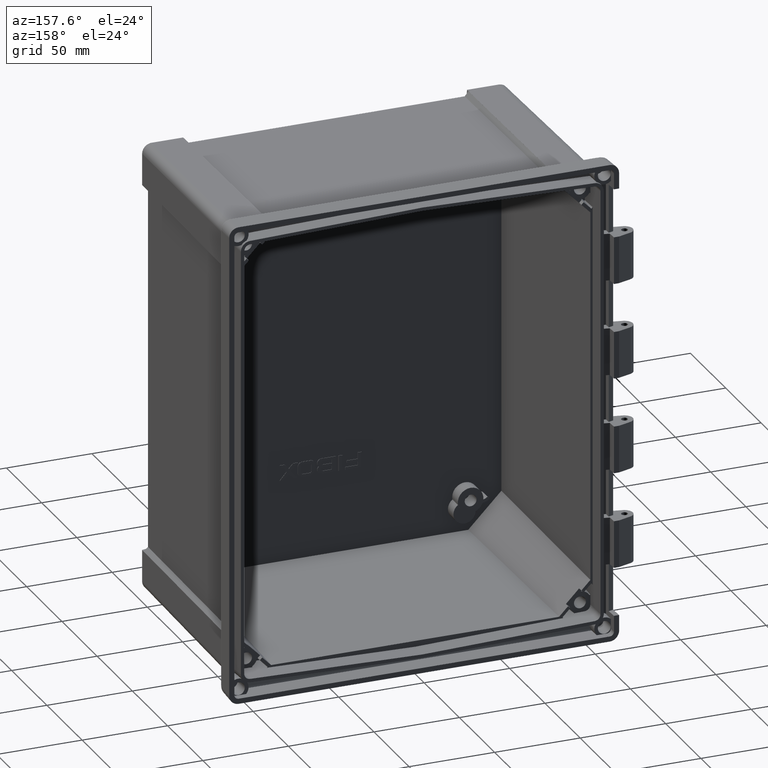
[diagram: clean part render]
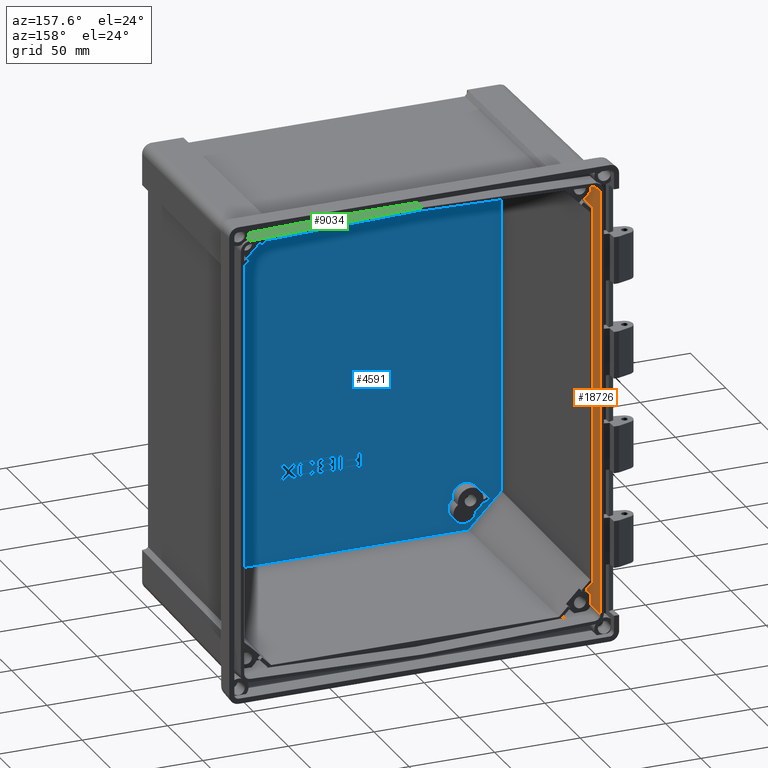
[diagram: same view with three faces highlighted in distinct colors, each labeled with its STEP entity id]
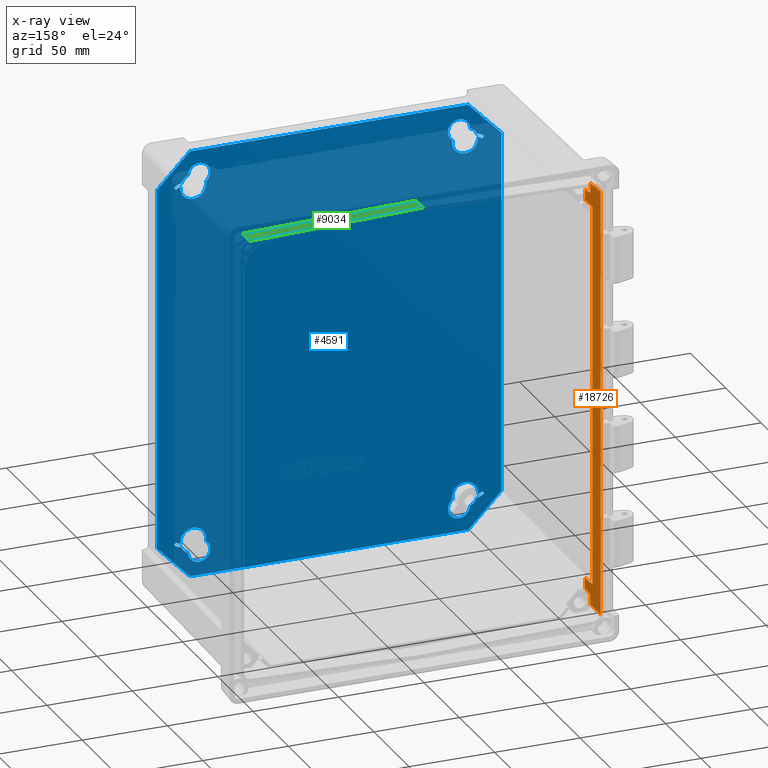
[diagram: x-ray of the same camera — body ghosted, the three highlighted faces saturated]
A machine part, auxiliary view with three faces highlighted in distinct colors.
The next image is the same camera in x-ray (body ghosted, the three faces saturated) — at least one of them is partly hidden behind the body in this view.
Their STEP definitions:

[orange] entity #18726 — the highlighted planar face has unit normal (0.9994, 0.0349, 0).
#162 = CARTESIAN_POINT ( 'NONE',  ( -103.4308259244309100, -23.00000000000000000, -117.9988522788570400 ) ) ;
#369 = CARTESIAN_POINT ( 'NONE',  ( -104.1313753109585000, -2.938890330204669600, -111.8300154407837100 ) ) ;
#495 = ORIENTED_EDGE ( 'NONE', *, *, #2017, .T. ) ;
#535 = EDGE_CURVE ( 'NONE', #14487, #4818, #5484, .T. ) ;
#607 = EDGE_CURVE ( 'NONE', #2114, #2254, #876, .T. ) ;
#876 = LINE ( 'NONE', #17382, #17849 ) ;
#1056 = CARTESIAN_POINT ( 'NONE',  ( -103.6825029301784400, -15.79291351792850400, 115.4162786159011800 ) ) ;
#1107 = CARTESIAN_POINT ( 'NONE',  ( -103.5987204892935300, -18.19212871576981900, 118.4950148596253700 ) ) ;
#1117 = VECTOR ( 'NONE', #5476, 1000.000000000000000 ) ;
#1597 = CARTESIAN_POINT ( 'NONE',  ( -103.4308259244309100, -23.00000000000000000, -117.9988522788570400 ) ) ;
#1822 = DIRECTION ( 'NONE',  ( 0.03489926192117735700, -0.9993841037616445500, 0.003668060235561879400 ) ) ;
#1830 = EDGE_CURVE ( 'NONE', #11108, #9424, #9783, .T. ) ;
#1956 = CARTESIAN_POINT ( 'NONE',  ( -104.0984760740683200, -3.881001210607279100, 111.8265575916495300 ) ) ;
#2017 = EDGE_CURVE ( 'NONE', #12022, #15631, #2290, .T. ) ;
#2114 = VERTEX_POINT ( 'NONE', #14749 ) ;
#2254 = VERTEX_POINT ( 'NONE', #16575 ) ;
#2263 = CARTESIAN_POINT ( 'NONE',  ( -103.7872652386536900, -12.79291351792850400, 128.5170091537690700 ) ) ;
#2289 = ORIENTED_EDGE ( 'NONE', *, *, #7786, .F. ) ;
#2290 = B_SPLINE_CURVE_WITH_KNOTS ( 'NONE', 3,
 ( #162, #5931, #16038, #7401 ),
 .UNSPECIFIED., .F., .F.,
 ( 4, 4 ),
 ( 0.0000000000000000000, 0.007254335360605193100 ),
 .UNSPECIFIED. ) ;
#2300 = VECTOR ( 'NONE', #16602, 1000.000000000000000 ) ;
#2340 = CARTESIAN_POINT ( 'NONE',  ( -103.4308259244309100, -23.00000000000000000, -111.7563847332468900 ) ) ;
#2637 = EDGE_CURVE ( 'NONE', #4071, #2254, #13010, .T. ) ;
#2650 = DIRECTION ( 'NONE',  ( -0.03487934512674303200, 0.9988137613916394700, -0.03397795370846536800 ) ) ;
#2658 = ORIENTED_EDGE ( 'NONE', *, *, #14439, .T. ) ;
#3007 = VERTEX_POINT ( 'NONE', #17009 ) ;
#3206 = CARTESIAN_POINT ( 'NONE',  ( -103.4308259244309100, -23.00000000000000000, -128.5000000000000000 ) ) ;
#3718 = VERTEX_POINT ( 'NONE', #13159 ) ;
#3773 = LINE ( 'NONE', #10301, #18236 ) ;
#4071 = VERTEX_POINT ( 'NONE', #16883 ) ;
#4091 = VECTOR ( 'NONE', #11856, 1000.000000000000000 ) ;
#4249 = EDGE_CURVE ( 'NONE', #4818, #16951, #14559, .T. ) ;
#4359 = CARTESIAN_POINT ( 'NONE',  ( -99.54119841926623700, -134.3843584140913700, 120.6230544466840200 ) ) ;
#4818 = VERTEX_POINT ( 'NONE', #14761 ) ;
#5060 = CARTESIAN_POINT ( 'NONE',  ( -103.7872652386536600, -12.79291351792850400, 124.7602110434836600 ) ) ;
#5104 = VERTEX_POINT ( 'NONE', #2340 ) ;
#5129 = VECTOR ( 'NONE', #6356, 1000.000000000000000 ) ;
#5206 = CARTESIAN_POINT ( 'NONE',  ( -103.7872652386536900, -12.79291351792850400, 111.7938480147869200 ) ) ;
#5287 = LINE ( 'NONE', #3206, #2300 ) ;
#5328 = EDGE_CURVE ( 'NONE', #4071, #8187, #5360, .T. ) ;
#5360 = LINE ( 'NONE', #4359, #10367 ) ;
#5476 = DIRECTION ( 'NONE',  ( -2.710935970784961700E-015, -0.0000000000000000000, -1.000000000000000000 ) ) ;
#5484 = LINE ( 'NONE', #1056, #1117 ) ;
#5931 = CARTESIAN_POINT ( 'NONE',  ( -103.5148045137928800, -20.59516784468852200, -118.2378401168267600 ) ) ;
#6026 = LINE ( 'NONE', #14329, #14717 ) ;
#6356 = DIRECTION ( 'NONE',  ( -1.079983486989452000E-016, -0.0000000000000000000, 1.000000000000000000 ) ) ;
#7130 = DIRECTION ( 'NONE',  ( 0.03487934512674304600, -0.9988137613916394700, -0.03397795370846537500 ) ) ;
#7227 = CARTESIAN_POINT ( 'NONE',  ( -104.1292413142658500, -3.000000000000000000, -128.5000000000000000 ) ) ;
#7401 = CARTESIAN_POINT ( 'NONE',  ( -103.6825029301784300, -15.79291351792850400, -118.7851837234541500 ) ) ;
#7786 = EDGE_CURVE ( 'NONE', #3007, #16951, #5287, .T. ) ;
#7901 = DIRECTION ( 'NONE',  ( -0.03489926192117735700, 0.9993841037616445500, 0.003668060235561879400 ) ) ;
#8056 = VECTOR ( 'NONE', #18259, 1000.000000000000200 ) ;
#8187 = VERTEX_POINT ( 'NONE', #13026 ) ;
#8604 = ORIENTED_EDGE ( 'NONE', *, *, #13134, .T. ) ;
#8680 = CARTESIAN_POINT ( 'NONE',  ( -103.7872652386536600, -12.79291351792850400, -111.7938480147868900 ) ) ;
#9119 = CARTESIAN_POINT ( 'NONE',  ( -103.4308259244309100, -23.00000000000000000, -128.5000000000000000 ) ) ;
#9330 = ORIENTED_EDGE ( 'NONE', *, *, #2637, .F. ) ;
#9424 = VERTEX_POINT ( 'NONE', #5206 ) ;
#9783 = LINE ( 'NONE', #2263, #15950 ) ;
#10275 = DIRECTION ( 'NONE',  ( 0.9993908270190957600, 0.03489949670250105200, 1.079325590229355300E-016 ) ) ;
#10301 = CARTESIAN_POINT ( 'NONE',  ( -103.7872652386536600, -12.79291351792850400, -124.7602110434836600 ) ) ;
#10312 = EDGE_CURVE ( 'NONE', #14487, #8187, #12822, .T. ) ;
#10367 = VECTOR ( 'NONE', #7130, 1000.000000000000100 ) ;
#10440 = CARTESIAN_POINT ( 'NONE',  ( -103.6825029301784300, -15.79291351792850400, -118.7851837234541500 ) ) ;
#10445 = EDGE_LOOP ( 'NONE', ( #18778, #17632, #2289, #12848, #17002, #8604, #15655, #495, #10980, #2658, #14171, #9330, #18903, #14258 ) ) ;
#10633 = EDGE_CURVE ( 'NONE', #3007, #9424, #15593, .T. ) ;
#10980 = ORIENTED_EDGE ( 'NONE', *, *, #18133, .F. ) ;
#11108 = VERTEX_POINT ( 'NONE', #8680 ) ;
#11856 = DIRECTION ( 'NONE',  ( 1.079983486989452000E-016, 0.0000000000000000000, -1.000000000000000000 ) ) ;
#12022 = VERTEX_POINT ( 'NONE', #1597 ) ;
#12733 = CARTESIAN_POINT ( 'NONE',  ( -103.5148045137929000, -20.59516784468851500, 118.2378401168267700 ) ) ;
#12822 = LINE ( 'NONE', #5060, #8056 ) ;
#12848 = ORIENTED_EDGE ( 'NONE', *, *, #10633, .T. ) ;
#13010 = LINE ( 'NONE', #17778, #4091 ) ;
#13026 = CARTESIAN_POINT ( 'NONE',  ( -103.7872652115580600, -12.79291351792850400, 124.7601083646913200 ) ) ;
#13109 = CARTESIAN_POINT ( 'NONE',  ( -103.6825029301784200, -15.79291351792850400, 124.7602110434836600 ) ) ;
#13134 = EDGE_CURVE ( 'NONE', #11108, #5104, #13186, .T. ) ;
#13159 = CARTESIAN_POINT ( 'NONE',  ( -103.6825029301784200, -15.79291351792850400, -124.7602110434836600 ) ) ;
#13186 = LINE ( 'NONE', #369, #13893 ) ;
#13229 = DIRECTION ( 'NONE',  ( -0.03489949670250104600, 0.9993908270190956500, -0.0000000000000000000 ) ) ;
#13893 = VECTOR ( 'NONE', #1822, 1000.000000000000000 ) ;
#13894 = AXIS2_PLACEMENT_3D ( 'NONE', #7227, #10275, #16186 ) ;
#14012 = FACE_OUTER_BOUND ( 'NONE', #10445, .T. ) ;
#14171 = ORIENTED_EDGE ( 'NONE', *, *, #607, .T. ) ;
#14202 = CARTESIAN_POINT ( 'NONE',  ( -103.4308259244309300, -23.00000000000000000, 117.9988522788570300 ) ) ;
#14258 = ORIENTED_EDGE ( 'NONE', *, *, #10312, .F. ) ;
#14329 = CARTESIAN_POINT ( 'NONE',  ( -103.6825029301784400, -15.79291351792850400, -115.4162786159011800 ) ) ;
#14439 = EDGE_CURVE ( 'NONE', #3718, #2114, #3773, .T. ) ;
#14487 = VERTEX_POINT ( 'NONE', #13109 ) ;
#14559 = B_SPLINE_CURVE_WITH_KNOTS ( 'NONE', 3,
 ( #15643, #1107, #12733, #17060 ),
 .UNSPECIFIED., .F., .F.,
 ( 4, 4 ),
 ( 9.988392560573487400E-016, 0.007254312124366521200 ),
 .UNSPECIFIED. ) ;
#14717 = VECTOR ( 'NONE', #16005, 1000.000000000000000 ) ;
#14749 = CARTESIAN_POINT ( 'NONE',  ( -103.7872651746618100, -12.79291351792850200, -124.7600357146438900 ) ) ;
#14761 = CARTESIAN_POINT ( 'NONE',  ( -103.6825029301784300, -15.79291351792850400, 118.7851837234543200 ) ) ;
#15593 = LINE ( 'NONE', #1956, #16520 ) ;
#15631 = VERTEX_POINT ( 'NONE', #10440 ) ;
#15643 = CARTESIAN_POINT ( 'NONE',  ( -103.6825029301784300, -15.79291351792850400, 118.7851837234543200 ) ) ;
#15655 = ORIENTED_EDGE ( 'NONE', *, *, #17800, .F. ) ;
#15950 = VECTOR ( 'NONE', #18476, 1000.000000000000000 ) ;
#16005 = DIRECTION ( 'NONE',  ( -2.710935970784961700E-015, 0.0000000000000000000, 1.000000000000000000 ) ) ;
#16038 = CARTESIAN_POINT ( 'NONE',  ( -103.5987204892934700, -18.19212871577082100, -118.4950148596252100 ) ) ;
#16186 = DIRECTION ( 'NONE',  ( -0.03489949670250104600, 0.9993908270190956500, 0.0000000000000000000 ) ) ;
#16520 = VECTOR ( 'NONE', #7901, 1000.000000000000000 ) ;
#16575 = CARTESIAN_POINT ( 'NONE',  ( -104.1467016990117300, -2.500000000000000000, -125.1095371107005000 ) ) ;
#16602 = DIRECTION ( 'NONE',  ( -1.079983486989452000E-016, -0.0000000000000000000, 1.000000000000000000 ) ) ;
#16883 = CARTESIAN_POINT ( 'NONE',  ( -104.1467016990117600, -2.500000000000000000, 125.1095371107003300 ) ) ;
#16951 = VERTEX_POINT ( 'NONE', #14202 ) ;
#17002 = ORIENTED_EDGE ( 'NONE', *, *, #1830, .F. ) ;
#17009 = CARTESIAN_POINT ( 'NONE',  ( -103.4308259244309300, -23.00000000000000000, 111.7563847332468300 ) ) ;
#17060 = CARTESIAN_POINT ( 'NONE',  ( -103.4308259244309300, -23.00000000000000000, 117.9988522788570300 ) ) ;
#17382 = CARTESIAN_POINT ( 'NONE',  ( -104.1507399921769100, -2.384358414091372900, -125.1134710417341400 ) ) ;
#17603 = PLANE ( 'NONE',  #13894 ) ;
#17632 = ORIENTED_EDGE ( 'NONE', *, *, #4249, .T. ) ;
#17778 = CARTESIAN_POINT ( 'NONE',  ( -104.1467016990117300, -2.500000000000000000, -128.5000000000000000 ) ) ;
#17800 = EDGE_CURVE ( 'NONE', #12022, #5104, #18418, .T. ) ;
#17849 = VECTOR ( 'NONE', #2650, 1000.000000000000100 ) ;
#18133 = EDGE_CURVE ( 'NONE', #3718, #15631, #6026, .T. ) ;
#18236 = VECTOR ( 'NONE', #13229, 1000.000000000000200 ) ;
#18259 = DIRECTION ( 'NONE',  ( -0.03489949670250104600, 0.9993908270190956500, 9.461030097310122400E-017 ) ) ;
#18418 = LINE ( 'NONE', #9119, #5129 ) ;
#18476 = DIRECTION ( 'NONE',  ( -1.079840551783293100E-016, 0.0000000000000000000, 1.000000000000000000 ) ) ;
#18726 = ADVANCED_FACE ( 'NONE', ( #14012 ), #17603, .T. ) ;
#18778 = ORIENTED_EDGE ( 'NONE', *, *, #535, .T. ) ;
#18903 = ORIENTED_EDGE ( 'NONE', *, *, #5328, .T. ) ;

[blue] entity #4591 — the highlighted planar face has unit normal (0, 1, -0).
#25 = EDGE_CURVE ( 'NONE', #6224, #9721, #12298, .T. ) ;
#80 = CARTESIAN_POINT ( 'NONE',  ( -81.38385470992932400, -134.9000000000000300, 125.7571582640641200 ) ) ;
#90 = VECTOR ( 'NONE', #12919, 1000.000000000000000 ) ;
#104 = VERTEX_POINT ( 'NONE', #18138 ) ;
#259 = LINE ( 'NONE', #4512, #1166 ) ;
#300 = DIRECTION ( 'NONE',  ( 0.0000000000000000000, 1.000000000000000000, 0.0000000000000000000 ) ) ;
#383 = ORIENTED_EDGE ( 'NONE', *, *, #5688, .T. ) ;
#404 = CARTESIAN_POINT ( 'NONE',  ( 79.50000000000002800, -134.9000000000000300, 104.7999999999999800 ) ) ;
#466 = CIRCLE ( 'NONE', #7489, 0.5000000000000004400 ) ;
#470 = CARTESIAN_POINT ( 'NONE',  ( -75.99999999999998600, -134.9000000000000300, -111.5000000000000000 ) ) ;
#562 = CIRCLE ( 'NONE', #18793, 4.500000000000017800 ) ;
#600 = DIRECTION ( 'NONE',  ( 0.0000000000000000000, 0.0000000000000000000, -1.000000000000000000 ) ) ;
#633 = CIRCLE ( 'NONE', #6639, 4.500000000000017800 ) ;
#683 = CARTESIAN_POINT ( 'NONE',  ( -90.86232990443230100, -134.9000000000000300, 116.0605509344103700 ) ) ;
#694 = CIRCLE ( 'NONE', #8049, 7.499999999999992900 ) ;
#738 = EDGE_CURVE ( 'NONE', #4088, #5818, #7761, .T. ) ;
#831 = ORIENTED_EDGE ( 'NONE', *, *, #1945, .T. ) ;
#842 = VECTOR ( 'NONE', #3531, 1000.000000000000100 ) ;
#863 = CARTESIAN_POINT ( 'NONE',  ( -79.49999999999998600, -134.9000000000000300, 97.29999999999999700 ) ) ;
#965 = CARTESIAN_POINT ( 'NONE',  ( -86.44130349117003200, -134.9000000000000300, -107.6404763409455000 ) ) ;
#1030 = VERTEX_POINT ( 'NONE', #4283 ) ;
#1050 = CARTESIAN_POINT ( 'NONE',  ( 100.7822178753233700, -134.9000000000000300, 125.7627436806437800 ) ) ;
#1166 = VECTOR ( 'NONE', #4383, 1000.000000000000000 ) ;
#1225 = DIRECTION ( 'NONE',  ( 0.0000000000000000000, 0.0000000000000000000, 1.000000000000000000 ) ) ;
#1256 = AXIS2_PLACEMENT_3D ( 'NONE', #12922, #9874, #2701 ) ;
#1286 = CARTESIAN_POINT ( 'NONE',  ( 75.99999999999998600, -134.9000000000000300, 111.5000000000000000 ) ) ;
#1327 = DIRECTION ( 'NONE',  ( 0.0000000000000000000, 0.0000000000000000000, -1.000000000000000000 ) ) ;
#1370 = EDGE_CURVE ( 'NONE', #7400, #17726, #10467, .T. ) ;
#1393 = ORIENTED_EDGE ( 'NONE', *, *, #8363, .F. ) ;
#1542 = EDGE_CURVE ( 'NONE', #10922, #7400, #13428, .T. ) ;
#1558 = DIRECTION ( 'NONE',  ( 0.0000000000000000000, 0.0000000000000000000, -1.000000000000000000 ) ) ;
#1661 = ORIENTED_EDGE ( 'NONE', *, *, #15473, .T. ) ;
#1684 = DIRECTION ( 'NONE',  ( -1.000000000000000000, 0.0000000000000000000, 1.705176904400339600E-016 ) ) ;
#1699 = EDGE_CURVE ( 'NONE', #14199, #8809, #4267, .T. ) ;
#1787 = AXIS2_PLACEMENT_3D ( 'NONE', #3443, #16922, #13696 ) ;
#1839 = VERTEX_POINT ( 'NONE', #5224 ) ;
#1940 = DIRECTION ( 'NONE',  ( 0.0000000000000000000, 1.000000000000000000, 0.0000000000000000000 ) ) ;
#1945 = EDGE_CURVE ( 'NONE', #2124, #15000, #5435, .T. ) ;
#1968 = VERTEX_POINT ( 'NONE', #18936 ) ;
#2000 = ORIENTED_EDGE ( 'NONE', *, *, #10782, .F. ) ;
#2003 = VERTEX_POINT ( 'NONE', #11851 ) ;
#2008 = DIRECTION ( 'NONE',  ( -0.0000000000000000000, 1.000000000000000000, -0.0000000000000000000 ) ) ;
#2062 = CARTESIAN_POINT ( 'NONE',  ( 86.96046681249322300, -134.9000000000000300, -105.5690480737166200 ) ) ;
#2079 = ORIENTED_EDGE ( 'NONE', *, *, #14554, .F. ) ;
#2124 = VERTEX_POINT ( 'NONE', #4528 ) ;
#2134 = VERTEX_POINT ( 'NONE', #10536 ) ;
#2167 = FACE_OUTER_BOUND ( 'NONE', #11824, .T. ) ;
#2261 = CARTESIAN_POINT ( 'NONE',  ( 90.39434835405982900, -134.9000000000000300, -105.3280071854753700 ) ) ;
#2307 = DIRECTION ( 'NONE',  ( 0.7151044260268458700, 0.0000000000000000000, 0.6990176391743023700 ) ) ;
#2316 = LINE ( 'NONE', #15358, #15369 ) ;
#2354 = CIRCLE ( 'NONE', #5199, 6.500000000000005300 ) ;
#2384 = CARTESIAN_POINT ( 'NONE',  ( 89.00592746446618300, -134.9000000000000300, -104.6000985423753300 ) ) ;
#2447 = CIRCLE ( 'NONE', #14194, 6.500000000000005300 ) ;
#2527 = CARTESIAN_POINT ( 'NONE',  ( 86.96046681249323700, -134.9000000000000300, 105.5690480737166000 ) ) ;
#2635 = DIRECTION ( 'NONE',  ( -0.0000000000000000000, -1.000000000000000000, -0.0000000000000000000 ) ) ;
#2667 = CARTESIAN_POINT ( 'NONE',  ( 90.04483953447267200, -134.9000000000000300, 105.6855593984887900 ) ) ;
#2668 = CARTESIAN_POINT ( 'NONE',  ( -75.99999999999998600, -134.9000000000000300, -118.0000000000000100 ) ) ;
#2701 = DIRECTION ( 'NONE',  ( 0.0000000000000000000, 0.0000000000000000000, 1.000000000000000000 ) ) ;
#2749 = ORIENTED_EDGE ( 'NONE', *, *, #9421, .T. ) ;
#2967 = ORIENTED_EDGE ( 'NONE', *, *, #15245, .T. ) ;
#3066 = LINE ( 'NONE', #5783, #18424 ) ;
#3096 = CARTESIAN_POINT ( 'NONE',  ( -90.04483953447267200, -134.9000000000000300, 105.6855593984887900 ) ) ;
#3114 = CARTESIAN_POINT ( 'NONE',  ( -100.7822178753233000, -134.9000000000000300, 105.9123724105407800 ) ) ;
#3139 = ORIENTED_EDGE ( 'NONE', *, *, #17270, .F. ) ;
#3161 = EDGE_CURVE ( 'NONE', #7098, #12820, #2447, .T. ) ;
#3443 = CARTESIAN_POINT ( 'NONE',  ( -75.99999999999998600, -134.9000000000000300, 111.5000000000000000 ) ) ;
#3482 = DIRECTION ( 'NONE',  ( 0.6990176391742998200, 0.0000000000000000000, 0.7151044260268485400 ) ) ;
#3531 = DIRECTION ( 'NONE',  ( -0.7151044260268458700, 0.0000000000000000000, 0.6990176391743023700 ) ) ;
#3664 = DIRECTION ( 'NONE',  ( 0.0000000000000000000, 1.000000000000000000, 0.0000000000000000000 ) ) ;
#3757 = ORIENTED_EDGE ( 'NONE', *, *, #1542, .F. ) ;
#3769 = DIRECTION ( 'NONE',  ( 0.0000000000000000000, 0.0000000000000000000, 1.000000000000000000 ) ) ;
#3809 = EDGE_CURVE ( 'NONE', #1839, #14199, #4010, .T. ) ;
#3833 = CARTESIAN_POINT ( 'NONE',  ( 86.44130349117001800, -134.9000000000000300, 107.6404763409455000 ) ) ;
#3890 = DIRECTION ( 'NONE',  ( 0.0000000000000000000, 0.0000000000000000000, 1.000000000000000000 ) ) ;
#3922 = EDGE_CURVE ( 'NONE', #7063, #17519, #14779, .T. ) ;
#3992 = ORIENTED_EDGE ( 'NONE', *, *, #1370, .F. ) ;
#4010 = CIRCLE ( 'NONE', #13836, 0.5000000000000004400 ) ;
#4020 = AXIS2_PLACEMENT_3D ( 'NONE', #404, #10621, #6099 ) ;
#4030 = DIRECTION ( 'NONE',  ( 0.0000000000000000000, 0.0000000000000000000, 1.000000000000000000 ) ) ;
#4088 = VERTEX_POINT ( 'NONE', #5026 ) ;
#4139 = DIRECTION ( 'NONE',  ( 0.0000000000000000000, 0.0000000000000000000, 1.000000000000000000 ) ) ;
#4177 = DIRECTION ( 'NONE',  ( 0.0000000000000000000, 1.000000000000000000, 0.0000000000000000000 ) ) ;
#4194 = CIRCLE ( 'NONE', #11405, 0.5000000000000004400 ) ;
#4195 = CARTESIAN_POINT ( 'NONE',  ( 72.14481036014669300, -134.9000000000000300, 106.2666919791810500 ) ) ;
#4216 = CARTESIAN_POINT ( 'NONE',  ( -7.632683877648426900, -134.9000000000000300, 216.8222718837420200 ) ) ;
#4267 = LINE ( 'NONE', #10583, #842 ) ;
#4283 = CARTESIAN_POINT ( 'NONE',  ( 90.37202234888103200, -134.9000000000000300, -106.0636485492929800 ) ) ;
#4383 = DIRECTION ( 'NONE',  ( -0.6990176391742990400, 0.0000000000000000000, -0.7151044260268492000 ) ) ;
#4389 = CARTESIAN_POINT ( 'NONE',  ( -90.37202234888103200, -134.9000000000000300, 106.0636485492929800 ) ) ;
#4409 = AXIS2_PLACEMENT_3D ( 'NONE', #8640, #18871, #1558 ) ;
#4416 = AXIS2_PLACEMENT_3D ( 'NONE', #470, #18208, #7721 ) ;
#4449 = DIRECTION ( 'NONE',  ( 0.0000000000000000000, 1.000000000000000000, 0.0000000000000000000 ) ) ;
#4502 = CARTESIAN_POINT ( 'NONE',  ( -100.7878032919030200, -134.9000000000000300, -125.7571582640640900 ) ) ;
#4503 = DIRECTION ( 'NONE',  ( 0.0000000000000000000, 1.000000000000000000, 0.0000000000000000000 ) ) ;
#4512 = CARTESIAN_POINT ( 'NONE',  ( 118.0975143276875200, -134.9000000000000300, -88.19859176020000300 ) ) ;
#4516 = CARTESIAN_POINT ( 'NONE',  ( 86.11864576157238100, -134.9000000000000300, -101.1484895888386400 ) ) ;
#4528 = CARTESIAN_POINT ( 'NONE',  ( 90.39434835405982900, -134.9000000000000300, 105.3280071854753400 ) ) ;
#4591 = ADVANCED_FACE ( 'NONE', ( #17988, #7203, #2167, #14983, #16843 ), #4746, .T. ) ;
#4666 = DIRECTION ( 'NONE',  ( 0.0000000000000000000, 1.000000000000000000, 0.0000000000000000000 ) ) ;
#4672 = VERTEX_POINT ( 'NONE', #10990 ) ;
#4736 = AXIS2_PLACEMENT_3D ( 'NONE', #13745, #6215, #16654 ) ;
#4740 = CARTESIAN_POINT ( 'NONE',  ( -90.37202234888103200, -134.9000000000000300, -106.0636485492929800 ) ) ;
#4746 = PLANE ( 'NONE',  #5901 ) ;
#4905 = ORIENTED_EDGE ( 'NONE', *, *, #738, .T. ) ;
#4970 = CARTESIAN_POINT ( 'NONE',  ( -86.11864576157238100, -134.9000000000000300, 101.1484895888386400 ) ) ;
#5026 = CARTESIAN_POINT ( 'NONE',  ( -89.67624536215264200, -134.9000000000000300, -104.6260584353104400 ) ) ;
#5041 = ORIENTED_EDGE ( 'NONE', *, *, #15595, .F. ) ;
#5043 = AXIS2_PLACEMENT_3D ( 'NONE', #17273, #4177, #7774 ) ;
#5074 = CIRCLE ( 'NONE', #6439, 0.5000000000000004400 ) ;
#5076 = ORIENTED_EDGE ( 'NONE', *, *, #15545, .F. ) ;
#5118 = CARTESIAN_POINT ( 'NONE',  ( -75.99999999999998600, -134.9000000000000300, -111.5000000000000000 ) ) ;
#5157 = VECTOR ( 'NONE', #1684, 1000.000000000000000 ) ;
#5174 = AXIS2_PLACEMENT_3D ( 'NONE', #5331, #12656, #3890 ) ;
#5199 = AXIS2_PLACEMENT_3D ( 'NONE', #17898, #2008, #6372 ) ;
#5224 = CARTESIAN_POINT ( 'NONE',  ( -89.32673654256549900, -134.9000000000000300, 104.4836106483238600 ) ) ;
#5283 = CARTESIAN_POINT ( 'NONE',  ( -89.00592746446618300, -134.9000000000000300, 104.6000985423753300 ) ) ;
#5289 = CARTESIAN_POINT ( 'NONE',  ( -89.00592746446618300, -134.9000000000000300, -104.6000985423753300 ) ) ;
#5321 = AXIS2_PLACEMENT_3D ( 'NONE', #16017, #10184, #13111 ) ;
#5331 = CARTESIAN_POINT ( 'NONE',  ( 75.99999999999998600, -134.9000000000000300, -111.5000000000000000 ) ) ;
#5368 = VERTEX_POINT ( 'NONE', #7387 ) ;
#5402 = EDGE_LOOP ( 'NONE', ( #3139, #10677, #18497, #5076, #6576, #8704, #15215, #6981, #12291, #10872 ) ) ;
#5426 = AXIS2_PLACEMENT_3D ( 'NONE', #13162, #4666, #14899 ) ;
#5435 = CIRCLE ( 'NONE', #11417, 0.5000000000000004400 ) ;
#5493 = DIRECTION ( 'NONE',  ( 0.0000000000000000000, 0.0000000000000000000, -1.000000000000000000 ) ) ;
#5495 = ORIENTED_EDGE ( 'NONE', *, *, #6257, .T. ) ;
#5551 = EDGE_CURVE ( 'NONE', #12820, #12145, #10124, .T. ) ;
#5609 = CARTESIAN_POINT ( 'NONE',  ( 89.00592746446618300, -134.9000000000000300, 104.6000985423753300 ) ) ;
#5629 = DIRECTION ( 'NONE',  ( 0.0000000000000000000, 0.0000000000000000000, 1.000000000000000000 ) ) ;
#5683 = EDGE_CURVE ( 'NONE', #1968, #13768, #7388, .T. ) ;
#5688 = EDGE_CURVE ( 'NONE', #11930, #12949, #15161, .T. ) ;
#5700 = EDGE_CURVE ( 'NONE', #19002, #16831, #10344, .T. ) ;
#5783 = CARTESIAN_POINT ( 'NONE',  ( 89.67624536215264200, -134.9000000000000300, -104.6260584353104400 ) ) ;
#5818 = VERTEX_POINT ( 'NONE', #14580 ) ;
#5824 = CARTESIAN_POINT ( 'NONE',  ( -86.11864576157238100, -134.9000000000000300, -101.1484895888386400 ) ) ;
#5860 = CIRCLE ( 'NONE', #13177, 0.5000000000000004400 ) ;
#5861 = DIRECTION ( 'NONE',  ( 1.000000000000000000, 0.0000000000000000000, 0.0000000000000000000 ) ) ;
#5901 = AXIS2_PLACEMENT_3D ( 'NONE', #16471, #7709, #9170 ) ;
#5969 = CARTESIAN_POINT ( 'NONE',  ( -79.49999999999998600, -134.9000000000000300, 104.8000000000000100 ) ) ;
#6090 = CIRCLE ( 'NONE', #9220, 7.499999999999992900 ) ;
#6094 = CIRCLE ( 'NONE', #16060, 0.5000000000000004400 ) ;
#6099 = DIRECTION ( 'NONE',  ( 0.0000000000000000000, 0.0000000000000000000, 1.000000000000000000 ) ) ;
#6165 = DIRECTION ( 'NONE',  ( 0.0000000000000000000, 0.0000000000000000000, 1.000000000000000000 ) ) ;
#6215 = DIRECTION ( 'NONE',  ( 0.0000000000000000000, 1.000000000000000000, 0.0000000000000000000 ) ) ;
#6224 = VERTEX_POINT ( 'NONE', #7153 ) ;
#6237 = ORIENTED_EDGE ( 'NONE', *, *, #12998, .T. ) ;
#6257 = EDGE_CURVE ( 'NONE', #15352, #10342, #259, .T. ) ;
#6312 = CARTESIAN_POINT ( 'NONE',  ( -216.5925281097679800, -134.9000000000000300, 12.56312918913155000 ) ) ;
#6335 = VECTOR ( 'NONE', #16546, 1000.000000000000000 ) ;
#6372 = DIRECTION ( 'NONE',  ( 0.0000000000000000000, 0.0000000000000000000, -1.000000000000000000 ) ) ;
#6390 = AXIS2_PLACEMENT_3D ( 'NONE', #15844, #18751, #5629 ) ;
#6409 = CARTESIAN_POINT ( 'NONE',  ( -72.14481036014666400, -134.9000000000000300, -106.2666919791810800 ) ) ;
#6439 = AXIS2_PLACEMENT_3D ( 'NONE', #15795, #14188, #4139 ) ;
#6521 = DIRECTION ( 'NONE',  ( -0.0000000000000000000, -1.000000000000000000, -0.0000000000000000000 ) ) ;
#6542 = CARTESIAN_POINT ( 'NONE',  ( 86.11864576157238100, -134.9000000000000300, 101.1484895888386400 ) ) ;
#6576 = ORIENTED_EDGE ( 'NONE', *, *, #18113, .F. ) ;
#6596 = DIRECTION ( 'NONE',  ( 0.0000000000000000000, 0.0000000000000000000, 1.000000000000000000 ) ) ;
#6603 = CARTESIAN_POINT ( 'NONE',  ( -79.50000000000001400, -134.9000000000000300, -104.8000000000000000 ) ) ;
#6639 = AXIS2_PLACEMENT_3D ( 'NONE', #16703, #12371, #9648 ) ;
#6703 = CARTESIAN_POINT ( 'NONE',  ( -79.50000000000001400, -134.9000000000000300, -97.29999999999996900 ) ) ;
#6729 = DIRECTION ( 'NONE',  ( 0.0000000000000000000, 0.0000000000000000000, 1.000000000000000000 ) ) ;
#6732 = VERTEX_POINT ( 'NONE', #2527 ) ;
#6796 = CARTESIAN_POINT ( 'NONE',  ( 79.50000000000002800, -134.9000000000000300, 104.7999999999999800 ) ) ;
#6839 = LINE ( 'NONE', #4216, #7523 ) ;
#6877 = ORIENTED_EDGE ( 'NONE', *, *, #7740, .F. ) ;
#6981 = ORIENTED_EDGE ( 'NONE', *, *, #9823, .F. ) ;
#6993 = DIRECTION ( 'NONE',  ( -0.0000000000000000000, -1.000000000000000000, -0.0000000000000000000 ) ) ;
#7063 = VERTEX_POINT ( 'NONE', #10748 ) ;
#7098 = VERTEX_POINT ( 'NONE', #13443 ) ;
#7105 = DIRECTION ( 'NONE',  ( 0.0000000000000000000, 0.0000000000000000000, -1.000000000000000000 ) ) ;
#7153 = CARTESIAN_POINT ( 'NONE',  ( 79.49999999999998600, -134.9000000000000300, -97.29999999999998300 ) ) ;
#7203 = FACE_BOUND ( 'NONE', #18185, .T. ) ;
#7267 = AXIS2_PLACEMENT_3D ( 'NONE', #1286, #6993, #7105 ) ;
#7277 = CARTESIAN_POINT ( 'NONE',  ( -100.7822178753233000, -134.9000000000000300, 125.7627436806437800 ) ) ;
#7316 = CARTESIAN_POINT ( 'NONE',  ( -100.7878032919029700, -134.9000000000000300, 125.7571582640641200 ) ) ;
#7387 = CARTESIAN_POINT ( 'NONE',  ( -86.96046681249325200, -134.9000000000000300, -105.5690480737166000 ) ) ;
#7388 = CIRCLE ( 'NONE', #5174, 6.500000000000005300 ) ;
#7400 = VERTEX_POINT ( 'NONE', #12610 ) ;
#7418 = VERTEX_POINT ( 'NONE', #5289 ) ;
#7465 = DIRECTION ( 'NONE',  ( 0.0000000000000000000, 0.0000000000000000000, 1.000000000000000000 ) ) ;
#7489 = AXIS2_PLACEMENT_3D ( 'NONE', #3096, #13300, #13116 ) ;
#7523 = VECTOR ( 'NONE', #13090, 1000.000000000000000 ) ;
#7563 = VERTEX_POINT ( 'NONE', #5609 ) ;
#7568 = DIRECTION ( 'NONE',  ( 0.0000000000000000000, 1.000000000000000000, 0.0000000000000000000 ) ) ;
#7690 = AXIS2_PLACEMENT_3D ( 'NONE', #4970, #3664, #12354 ) ;
#7696 = CIRCLE ( 'NONE', #4020, 7.499999999999992900 ) ;
#7709 = DIRECTION ( 'NONE',  ( 0.0000000000000000000, 1.000000000000000000, -0.0000000000000000000 ) ) ;
#7721 = DIRECTION ( 'NONE',  ( 0.0000000000000000000, 0.0000000000000000000, 1.000000000000000000 ) ) ;
#7734 = DIRECTION ( 'NONE',  ( -6.551401510808472500E-017, 0.0000000000000000000, 1.000000000000000000 ) ) ;
#7740 = EDGE_CURVE ( 'NONE', #8809, #16072, #466, .T. ) ;
#7761 = LINE ( 'NONE', #16989, #14836 ) ;
#7774 = DIRECTION ( 'NONE',  ( 0.0000000000000000000, 0.0000000000000000000, 1.000000000000000000 ) ) ;
#8049 = AXIS2_PLACEMENT_3D ( 'NONE', #9072, #300, #9520 ) ;
#8143 = EDGE_CURVE ( 'NONE', #5368, #12727, #12790, .T. ) ;
#8149 = CARTESIAN_POINT ( 'NONE',  ( 75.99999999999998600, -134.9000000000000300, -118.0000000000000100 ) ) ;
#8165 = ORIENTED_EDGE ( 'NONE', *, *, #5700, .T. ) ;
#8171 = DIRECTION ( 'NONE',  ( -0.7151044260268458700, 0.0000000000000000000, -0.6990176391743023700 ) ) ;
#8303 = CIRCLE ( 'NONE', #11662, 4.500000000000017800 ) ;
#8363 = EDGE_CURVE ( 'NONE', #104, #4672, #14859, .T. ) ;
#8531 = ORIENTED_EDGE ( 'NONE', *, *, #11258, .F. ) ;
#8599 = DIRECTION ( 'NONE',  ( -0.0000000000000000000, 1.000000000000000000, -0.0000000000000000000 ) ) ;
#8605 = CARTESIAN_POINT ( 'NONE',  ( -90.04483953447267200, -134.9000000000000300, -105.6855593984887900 ) ) ;
#8640 = CARTESIAN_POINT ( 'NONE',  ( -89.32673654256549900, -134.9000000000000300, -104.9836106483238600 ) ) ;
#8686 = LINE ( 'NONE', #7316, #9145 ) ;
#8704 = ORIENTED_EDGE ( 'NONE', *, *, #18816, .F. ) ;
#8809 = VERTEX_POINT ( 'NONE', #18994 ) ;
#9052 = LINE ( 'NONE', #4502, #5157 ) ;
#9072 = CARTESIAN_POINT ( 'NONE',  ( 79.50000000000002800, -134.9000000000000300, 104.7999999999999800 ) ) ;
#9145 = VECTOR ( 'NONE', #5861, 1000.000000000000000 ) ;
#9170 = DIRECTION ( 'NONE',  ( 0.0000000000000000000, 0.0000000000000000000, 1.000000000000000000 ) ) ;
#9220 = AXIS2_PLACEMENT_3D ( 'NONE', #6796, #17033, #3769 ) ;
#9222 = EDGE_CURVE ( 'NONE', #13768, #13512, #14125, .T. ) ;
#9241 = DIRECTION ( 'NONE',  ( -0.0000000000000000000, 1.000000000000000000, -0.0000000000000000000 ) ) ;
#9310 = DIRECTION ( 'NONE',  ( 0.0000000000000000000, 0.0000000000000000000, 1.000000000000000000 ) ) ;
#9421 = EDGE_CURVE ( 'NONE', #16831, #2124, #2316, .T. ) ;
#9436 = ORIENTED_EDGE ( 'NONE', *, *, #12882, .F. ) ;
#9462 = VERTEX_POINT ( 'NONE', #3833 ) ;
#9463 = EDGE_LOOP ( 'NONE', ( #10954, #18374, #383, #2000, #2079, #14323, #13495, #8165, #2749, #831 ) ) ;
#9520 = DIRECTION ( 'NONE',  ( 0.0000000000000000000, 0.0000000000000000000, 1.000000000000000000 ) ) ;
#9590 = AXIS2_PLACEMENT_3D ( 'NONE', #6603, #12332, #6729 ) ;
#9626 = EDGE_CURVE ( 'NONE', #1030, #17455, #2354, .T. ) ;
#9648 = DIRECTION ( 'NONE',  ( 0.0000000000000000000, 0.0000000000000000000, 1.000000000000000000 ) ) ;
#9679 = CIRCLE ( 'NONE', #1256, 7.500000000000020400 ) ;
#9721 = VERTEX_POINT ( 'NONE', #2062 ) ;
#9762 = CARTESIAN_POINT ( 'NONE',  ( 100.7822178753233700, -134.9000000000000300, -105.9123724105406800 ) ) ;
#9823 = EDGE_CURVE ( 'NONE', #13512, #6224, #9679, .T. ) ;
#9874 = DIRECTION ( 'NONE',  ( 0.0000000000000000000, 1.000000000000000000, 0.0000000000000000000 ) ) ;
#9917 = ORIENTED_EDGE ( 'NONE', *, *, #3922, .T. ) ;
#10124 = CIRCLE ( 'NONE', #4416, 6.500000000000005300 ) ;
#10133 = ORIENTED_EDGE ( 'NONE', *, *, #16664, .T. ) ;
#10184 = DIRECTION ( 'NONE',  ( 0.0000000000000000000, -1.000000000000000000, 0.0000000000000000000 ) ) ;
#10206 = LINE ( 'NONE', #6312, #6335 ) ;
#10288 = CARTESIAN_POINT ( 'NONE',  ( 89.32673654256549900, -134.9000000000000300, -104.9836106483238600 ) ) ;
#10342 = VERTEX_POINT ( 'NONE', #18385 ) ;
#10344 = CIRCLE ( 'NONE', #16093, 0.5000000000000004400 ) ;
#10355 = ORIENTED_EDGE ( 'NONE', *, *, #10394, .F. ) ;
#10394 = EDGE_CURVE ( 'NONE', #17726, #1839, #5074, .T. ) ;
#10467 = CIRCLE ( 'NONE', #5321, 4.500000000000017800 ) ;
#10536 = CARTESIAN_POINT ( 'NONE',  ( -81.38385470992929500, -134.9000000000000300, -125.7571582640641200 ) ) ;
#10583 = CARTESIAN_POINT ( 'NONE',  ( -89.67624536215264200, -134.9000000000000300, 104.6260584353104400 ) ) ;
#10621 = DIRECTION ( 'NONE',  ( 0.0000000000000000000, 1.000000000000000000, 0.0000000000000000000 ) ) ;
#10626 = VERTEX_POINT ( 'NONE', #17547 ) ;
#10677 = ORIENTED_EDGE ( 'NONE', *, *, #9626, .F. ) ;
#10748 = CARTESIAN_POINT ( 'NONE',  ( -100.7822178753232800, -134.9000000000000300, -105.9123724105407400 ) ) ;
#10782 = EDGE_CURVE ( 'NONE', #12836, #12949, #694, .T. ) ;
#10789 = CIRCLE ( 'NONE', #16611, 6.500000000000005300 ) ;
#10809 = CARTESIAN_POINT ( 'NONE',  ( -86.11864576157238100, -134.9000000000000300, -101.1484895888386400 ) ) ;
#10872 = ORIENTED_EDGE ( 'NONE', *, *, #5683, .F. ) ;
#10922 = VERTEX_POINT ( 'NONE', #863 ) ;
#10954 = ORIENTED_EDGE ( 'NONE', *, *, #13719, .T. ) ;
#10990 = CARTESIAN_POINT ( 'NONE',  ( -82.49764676270947900, -134.9000000000000300, 111.6748900999229100 ) ) ;
#11034 = CARTESIAN_POINT ( 'NONE',  ( 89.32673654256549900, -134.9000000000000300, 104.4836106483238600 ) ) ;
#11258 = EDGE_CURVE ( 'NONE', #4672, #17329, #12329, .T. ) ;
#11294 = ORIENTED_EDGE ( 'NONE', *, *, #11792, .T. ) ;
#11405 = AXIS2_PLACEMENT_3D ( 'NONE', #10288, #8599, #19013 ) ;
#11417 = AXIS2_PLACEMENT_3D ( 'NONE', #2667, #12751, #5493 ) ;
#11457 = CARTESIAN_POINT ( 'NONE',  ( 79.50000000000002800, -134.9000000000000300, 97.29999999999998300 ) ) ;
#11586 = EDGE_CURVE ( 'NONE', #16072, #104, #16487, .T. ) ;
#11615 = DIRECTION ( 'NONE',  ( 0.0000000000000000000, 0.0000000000000000000, 1.000000000000000000 ) ) ;
#11632 = DIRECTION ( 'NONE',  ( 0.7151044260268458700, 0.0000000000000000000, -0.6990176391743023700 ) ) ;
#11662 = AXIS2_PLACEMENT_3D ( 'NONE', #4516, #14765, #12073 ) ;
#11692 = CARTESIAN_POINT ( 'NONE',  ( 89.32673654256549900, -134.9000000000000300, 104.9836106483238600 ) ) ;
#11725 = CARTESIAN_POINT ( 'NONE',  ( -89.32673654256549900, -134.9000000000000300, 104.9836106483238600 ) ) ;
#11752 = VECTOR ( 'NONE', #3482, 999.9999999999998900 ) ;
#11770 = DIRECTION ( 'NONE',  ( 0.0000000000000000000, 0.0000000000000000000, 1.000000000000000000 ) ) ;
#11792 = EDGE_CURVE ( 'NONE', #11903, #2003, #8686, .T. ) ;
#11824 = EDGE_LOOP ( 'NONE', ( #9917, #2967, #11294, #16582, #1661, #5495, #17560, #10133 ) ) ;
#11835 = CARTESIAN_POINT ( 'NONE',  ( 72.14481036014663600, -134.9000000000000300, -106.2666919791810900 ) ) ;
#11851 = CARTESIAN_POINT ( 'NONE',  ( 81.38385470992928100, -134.9000000000000300, 125.7571582640641200 ) ) ;
#11903 = VERTEX_POINT ( 'NONE', #80 ) ;
#11930 = VERTEX_POINT ( 'NONE', #14660 ) ;
#12031 = CARTESIAN_POINT ( 'NONE',  ( -72.14481036014663600, -134.9000000000000300, 106.2666919791810900 ) ) ;
#12073 = DIRECTION ( 'NONE',  ( 0.0000000000000000000, 0.0000000000000000000, -1.000000000000000000 ) ) ;
#12145 = VERTEX_POINT ( 'NONE', #6409 ) ;
#12291 = ORIENTED_EDGE ( 'NONE', *, *, #9222, .F. ) ;
#12298 = CIRCLE ( 'NONE', #14958, 7.500000000000020400 ) ;
#12329 = CIRCLE ( 'NONE', #1787, 6.500000000000005300 ) ;
#12332 = DIRECTION ( 'NONE',  ( 0.0000000000000000000, 1.000000000000000000, 0.0000000000000000000 ) ) ;
#12354 = DIRECTION ( 'NONE',  ( 0.0000000000000000000, 0.0000000000000000000, 1.000000000000000000 ) ) ;
#12358 = EDGE_CURVE ( 'NONE', #2003, #16772, #6839, .T. ) ;
#12371 = DIRECTION ( 'NONE',  ( -0.0000000000000000000, 1.000000000000000000, -0.0000000000000000000 ) ) ;
#12406 = ORIENTED_EDGE ( 'NONE', *, *, #3809, .F. ) ;
#12482 = CARTESIAN_POINT ( 'NONE',  ( -89.67624536215264200, -134.9000000000000300, 104.6260584353104400 ) ) ;
#12577 = DIRECTION ( 'NONE',  ( -0.0000000000000000000, -1.000000000000000000, -0.0000000000000000000 ) ) ;
#12610 = CARTESIAN_POINT ( 'NONE',  ( -86.96046681249322300, -134.9000000000000300, 105.5690480737166200 ) ) ;
#12639 = EDGE_CURVE ( 'NONE', #6732, #7563, #633, .T. ) ;
#12656 = DIRECTION ( 'NONE',  ( 0.0000000000000000000, 1.000000000000000000, 0.0000000000000000000 ) ) ;
#12666 = ORIENTED_EDGE ( 'NONE', *, *, #1699, .F. ) ;
#12727 = VERTEX_POINT ( 'NONE', #6703 ) ;
#12751 = DIRECTION ( 'NONE',  ( -0.0000000000000000000, -1.000000000000000000, -0.0000000000000000000 ) ) ;
#12779 = EDGE_CURVE ( 'NONE', #14200, #1030, #13675, .T. ) ;
#12790 = CIRCLE ( 'NONE', #14588, 7.500000000000020400 ) ;
#12820 = VERTEX_POINT ( 'NONE', #2668 ) ;
#12836 = VERTEX_POINT ( 'NONE', #11457 ) ;
#12870 = AXIS2_PLACEMENT_3D ( 'NONE', #14914, #13376, #6165 ) ;
#12882 = EDGE_CURVE ( 'NONE', #12727, #12145, #14570, .T. ) ;
#12914 = VERTEX_POINT ( 'NONE', #2384 ) ;
#12919 = DIRECTION ( 'NONE',  ( 0.0000000000000000000, 0.0000000000000000000, -1.000000000000000000 ) ) ;
#12922 = CARTESIAN_POINT ( 'NONE',  ( 79.49999999999998600, -134.9000000000000300, -104.8000000000000100 ) ) ;
#12949 = VERTEX_POINT ( 'NONE', #4195 ) ;
#12954 = CIRCLE ( 'NONE', #4409, 0.5000000000000004400 ) ;
#12998 = EDGE_CURVE ( 'NONE', #7418, #4088, #12954, .T. ) ;
#13090 = DIRECTION ( 'NONE',  ( 0.6990176391742998200, 0.0000000000000000000, -0.7151044260268485400 ) ) ;
#13111 = DIRECTION ( 'NONE',  ( 0.0000000000000000000, 0.0000000000000000000, 1.000000000000000000 ) ) ;
#13116 = DIRECTION ( 'NONE',  ( 0.0000000000000000000, 0.0000000000000000000, -1.000000000000000000 ) ) ;
#13162 = CARTESIAN_POINT ( 'NONE',  ( -79.49999999999998600, -134.9000000000000300, 104.8000000000000100 ) ) ;
#13177 = AXIS2_PLACEMENT_3D ( 'NONE', #8605, #16074, #1225 ) ;
#13300 = DIRECTION ( 'NONE',  ( 0.0000000000000000000, 1.000000000000000000, 0.0000000000000000000 ) ) ;
#13355 = CIRCLE ( 'NONE', #14141, 7.500000000000020400 ) ;
#13376 = DIRECTION ( 'NONE',  ( 0.0000000000000000000, 1.000000000000000000, 0.0000000000000000000 ) ) ;
#13391 = VECTOR ( 'NONE', #7734, 1000.000000000000000 ) ;
#13428 = CIRCLE ( 'NONE', #14759, 7.500000000000020400 ) ;
#13443 = CARTESIAN_POINT ( 'NONE',  ( -82.49764676270947900, -134.9000000000000300, -111.6748900999228900 ) ) ;
#13495 = ORIENTED_EDGE ( 'NONE', *, *, #14456, .T. ) ;
#13512 = VERTEX_POINT ( 'NONE', #11835 ) ;
#13547 = ORIENTED_EDGE ( 'NONE', *, *, #8143, .F. ) ;
#13613 = ORIENTED_EDGE ( 'NONE', *, *, #17006, .T. ) ;
#13675 = CIRCLE ( 'NONE', #6390, 0.5000000000000004400 ) ;
#13696 = DIRECTION ( 'NONE',  ( 0.0000000000000000000, 0.0000000000000000000, -1.000000000000000000 ) ) ;
#13703 = EDGE_CURVE ( 'NONE', #11930, #9462, #6090, .T. ) ;
#13719 = EDGE_CURVE ( 'NONE', #15000, #9462, #14774, .T. ) ;
#13745 = CARTESIAN_POINT ( 'NONE',  ( 79.49999999999998600, -134.9000000000000300, -104.8000000000000100 ) ) ;
#13768 = VERTEX_POINT ( 'NONE', #8149 ) ;
#13836 = AXIS2_PLACEMENT_3D ( 'NONE', #11725, #4449, #16107 ) ;
#14125 = CIRCLE ( 'NONE', #12870, 6.500000000000005300 ) ;
#14141 = AXIS2_PLACEMENT_3D ( 'NONE', #5969, #7568, #11770 ) ;
#14188 = DIRECTION ( 'NONE',  ( 0.0000000000000000000, 1.000000000000000000, 0.0000000000000000000 ) ) ;
#14194 = AXIS2_PLACEMENT_3D ( 'NONE', #5118, #6521, #15339 ) ;
#14199 = VERTEX_POINT ( 'NONE', #12482 ) ;
#14200 = VERTEX_POINT ( 'NONE', #2261 ) ;
#14265 = CARTESIAN_POINT ( 'NONE',  ( 89.32673654256549900, -134.9000000000000300, 104.9836106483238600 ) ) ;
#14323 = ORIENTED_EDGE ( 'NONE', *, *, #12639, .T. ) ;
#14456 = EDGE_CURVE ( 'NONE', #7563, #19002, #6094, .T. ) ;
#14494 = CIRCLE ( 'NONE', #9590, 7.500000000000020400 ) ;
#14517 = LINE ( 'NONE', #683, #11752 ) ;
#14533 = DIRECTION ( 'NONE',  ( -0.0000000000000000000, -1.000000000000000000, -0.0000000000000000000 ) ) ;
#14554 = EDGE_CURVE ( 'NONE', #6732, #12836, #7696, .T. ) ;
#14570 = CIRCLE ( 'NONE', #5043, 7.500000000000020400 ) ;
#14580 = CARTESIAN_POINT ( 'NONE',  ( -90.39434835405982900, -134.9000000000000300, -105.3280071854753600 ) ) ;
#14588 = AXIS2_PLACEMENT_3D ( 'NONE', #15874, #17368, #11615 ) ;
#14660 = CARTESIAN_POINT ( 'NONE',  ( 82.49764676270947900, -134.9000000000000300, 111.6748900999228600 ) ) ;
#14759 = AXIS2_PLACEMENT_3D ( 'NONE', #16366, #4503, #7465 ) ;
#14765 = DIRECTION ( 'NONE',  ( 0.0000000000000000000, -1.000000000000000000, 0.0000000000000000000 ) ) ;
#14774 = CIRCLE ( 'NONE', #15726, 6.500000000000005300 ) ;
#14779 = LINE ( 'NONE', #7277, #13391 ) ;
#14836 = VECTOR ( 'NONE', #8171, 1000.000000000000100 ) ;
#14859 = CIRCLE ( 'NONE', #5426, 7.500000000000020400 ) ;
#14899 = DIRECTION ( 'NONE',  ( 0.0000000000000000000, 0.0000000000000000000, 1.000000000000000000 ) ) ;
#14914 = CARTESIAN_POINT ( 'NONE',  ( 75.99999999999998600, -134.9000000000000300, -111.5000000000000000 ) ) ;
#14958 = AXIS2_PLACEMENT_3D ( 'NONE', #16796, #1940, #9310 ) ;
#14983 = FACE_BOUND ( 'NONE', #5402, .T. ) ;
#15000 = VERTEX_POINT ( 'NONE', #19003 ) ;
#15005 = CARTESIAN_POINT ( 'NONE',  ( 100.7822178753233700, -134.9000000000000300, 105.9123724105406600 ) ) ;
#15161 = CIRCLE ( 'NONE', #7267, 6.500000000000005300 ) ;
#15215 = ORIENTED_EDGE ( 'NONE', *, *, #25, .F. ) ;
#15245 = EDGE_CURVE ( 'NONE', #17519, #11903, #14517, .T. ) ;
#15339 = DIRECTION ( 'NONE',  ( 0.0000000000000000000, 0.0000000000000000000, 1.000000000000000000 ) ) ;
#15352 = VERTEX_POINT ( 'NONE', #9762 ) ;
#15358 = CARTESIAN_POINT ( 'NONE',  ( 89.67624536215264200, -134.9000000000000300, 104.6260584353104400 ) ) ;
#15369 = VECTOR ( 'NONE', #2307, 1000.000000000000100 ) ;
#15473 = EDGE_CURVE ( 'NONE', #16772, #15352, #16134, .T. ) ;
#15545 = EDGE_CURVE ( 'NONE', #10626, #14200, #3066, .T. ) ;
#15595 = EDGE_CURVE ( 'NONE', #17329, #10922, #13355, .T. ) ;
#15636 = ORIENTED_EDGE ( 'NONE', *, *, #18634, .T. ) ;
#15726 = AXIS2_PLACEMENT_3D ( 'NONE', #6542, #12577, #6596 ) ;
#15795 = CARTESIAN_POINT ( 'NONE',  ( -89.32673654256549900, -134.9000000000000300, 104.9836106483238600 ) ) ;
#15844 = CARTESIAN_POINT ( 'NONE',  ( 90.04483953447267200, -134.9000000000000300, -105.6855593984887900 ) ) ;
#15874 = CARTESIAN_POINT ( 'NONE',  ( -79.50000000000001400, -134.9000000000000300, -104.8000000000000000 ) ) ;
#16017 = CARTESIAN_POINT ( 'NONE',  ( -86.11864576157238100, -134.9000000000000300, 101.1484895888386400 ) ) ;
#16060 = AXIS2_PLACEMENT_3D ( 'NONE', #11692, #14533, #16211 ) ;
#16072 = VERTEX_POINT ( 'NONE', #4389 ) ;
#16074 = DIRECTION ( 'NONE',  ( -0.0000000000000000000, -1.000000000000000000, -0.0000000000000000000 ) ) ;
#16093 = AXIS2_PLACEMENT_3D ( 'NONE', #14265, #2635, #4030 ) ;
#16107 = DIRECTION ( 'NONE',  ( 0.0000000000000000000, 0.0000000000000000000, 1.000000000000000000 ) ) ;
#16134 = LINE ( 'NONE', #1050, #90 ) ;
#16211 = DIRECTION ( 'NONE',  ( 0.0000000000000000000, 0.0000000000000000000, 1.000000000000000000 ) ) ;
#16271 = ORIENTED_EDGE ( 'NONE', *, *, #11586, .F. ) ;
#16366 = CARTESIAN_POINT ( 'NONE',  ( -79.49999999999998600, -134.9000000000000300, 104.8000000000000100 ) ) ;
#16471 = CARTESIAN_POINT ( 'NONE',  ( -100.7878032919029700, -134.9000000000000300, 125.7627436806437800 ) ) ;
#16487 = CIRCLE ( 'NONE', #7690, 6.500000000000005300 ) ;
#16541 = ORIENTED_EDGE ( 'NONE', *, *, #5551, .T. ) ;
#16546 = DIRECTION ( 'NONE',  ( -0.6990176391742994900, 0.0000000000000000000, 0.7151044260268488700 ) ) ;
#16582 = ORIENTED_EDGE ( 'NONE', *, *, #12358, .T. ) ;
#16611 = AXIS2_PLACEMENT_3D ( 'NONE', #5824, #17651, #1327 ) ;
#16637 = ORIENTED_EDGE ( 'NONE', *, *, #17815, .T. ) ;
#16654 = DIRECTION ( 'NONE',  ( 0.0000000000000000000, 0.0000000000000000000, 1.000000000000000000 ) ) ;
#16664 = EDGE_CURVE ( 'NONE', #2134, #7063, #10206, .T. ) ;
#16703 = CARTESIAN_POINT ( 'NONE',  ( 86.11864576157238100, -134.9000000000000300, 101.1484895888386400 ) ) ;
#16772 = VERTEX_POINT ( 'NONE', #15005 ) ;
#16796 = CARTESIAN_POINT ( 'NONE',  ( 79.49999999999998600, -134.9000000000000300, -104.8000000000000100 ) ) ;
#16808 = CARTESIAN_POINT ( 'NONE',  ( 89.67624536215264200, -134.9000000000000300, 104.6260584353104400 ) ) ;
#16831 = VERTEX_POINT ( 'NONE', #16808 ) ;
#16843 = FACE_BOUND ( 'NONE', #18665, .T. ) ;
#16922 = DIRECTION ( 'NONE',  ( 0.0000000000000000000, 1.000000000000000000, 0.0000000000000000000 ) ) ;
#16989 = CARTESIAN_POINT ( 'NONE',  ( -89.67624536215264200, -134.9000000000000300, -104.6260584353104400 ) ) ;
#17006 = EDGE_CURVE ( 'NONE', #5818, #17236, #5860, .T. ) ;
#17033 = DIRECTION ( 'NONE',  ( 0.0000000000000000000, 1.000000000000000000, 0.0000000000000000000 ) ) ;
#17236 = VERTEX_POINT ( 'NONE', #4740 ) ;
#17270 = EDGE_CURVE ( 'NONE', #17455, #1968, #17759, .T. ) ;
#17273 = CARTESIAN_POINT ( 'NONE',  ( -79.50000000000001400, -134.9000000000000300, -104.8000000000000000 ) ) ;
#17295 = CARTESIAN_POINT ( 'NONE',  ( 86.44130349117000400, -134.9000000000000300, -107.6404763409455000 ) ) ;
#17329 = VERTEX_POINT ( 'NONE', #12031 ) ;
#17368 = DIRECTION ( 'NONE',  ( 0.0000000000000000000, 1.000000000000000000, 0.0000000000000000000 ) ) ;
#17455 = VERTEX_POINT ( 'NONE', #17295 ) ;
#17519 = VERTEX_POINT ( 'NONE', #3114 ) ;
#17547 = CARTESIAN_POINT ( 'NONE',  ( 89.67624536215262800, -134.9000000000000300, -104.6260584353104000 ) ) ;
#17557 = EDGE_CURVE ( 'NONE', #10342, #2134, #9052, .T. ) ;
#17560 = ORIENTED_EDGE ( 'NONE', *, *, #17557, .T. ) ;
#17651 = DIRECTION ( 'NONE',  ( -0.0000000000000000000, -1.000000000000000000, -0.0000000000000000000 ) ) ;
#17726 = VERTEX_POINT ( 'NONE', #5283 ) ;
#17759 = CIRCLE ( 'NONE', #4736, 7.500000000000020400 ) ;
#17815 = EDGE_CURVE ( 'NONE', #5368, #7418, #562, .T. ) ;
#17882 = EDGE_CURVE ( 'NONE', #7098, #18022, #14494, .T. ) ;
#17898 = CARTESIAN_POINT ( 'NONE',  ( 86.11864576157238100, -134.9000000000000300, -101.1484895888386400 ) ) ;
#17988 = FACE_BOUND ( 'NONE', #9463, .T. ) ;
#18022 = VERTEX_POINT ( 'NONE', #965 ) ;
#18078 = ORIENTED_EDGE ( 'NONE', *, *, #17882, .F. ) ;
#18113 = EDGE_CURVE ( 'NONE', #12914, #10626, #4194, .T. ) ;
#18138 = CARTESIAN_POINT ( 'NONE',  ( -86.44130349117001800, -134.9000000000000300, 107.6404763409455000 ) ) ;
#18185 = EDGE_LOOP ( 'NONE', ( #15636, #18078, #18228, #16541, #9436, #13547, #16637, #6237, #4905, #13613 ) ) ;
#18208 = DIRECTION ( 'NONE',  ( -0.0000000000000000000, -1.000000000000000000, -0.0000000000000000000 ) ) ;
#18228 = ORIENTED_EDGE ( 'NONE', *, *, #3161, .T. ) ;
#18374 = ORIENTED_EDGE ( 'NONE', *, *, #13703, .F. ) ;
#18385 = CARTESIAN_POINT ( 'NONE',  ( 81.38385470992930900, -134.9000000000000300, -125.7571582640641500 ) ) ;
#18424 = VECTOR ( 'NONE', #11632, 1000.000000000000100 ) ;
#18497 = ORIENTED_EDGE ( 'NONE', *, *, #12779, .F. ) ;
#18634 = EDGE_CURVE ( 'NONE', #17236, #18022, #10789, .T. ) ;
#18665 = EDGE_LOOP ( 'NONE', ( #1393, #16271, #6877, #12666, #12406, #10355, #3992, #3757, #5041, #8531 ) ) ;
#18751 = DIRECTION ( 'NONE',  ( 0.0000000000000000000, 1.000000000000000000, 0.0000000000000000000 ) ) ;
#18793 = AXIS2_PLACEMENT_3D ( 'NONE', #10809, #9241, #600 ) ;
#18816 = EDGE_CURVE ( 'NONE', #9721, #12914, #8303, .T. ) ;
#18871 = DIRECTION ( 'NONE',  ( -0.0000000000000000000, -1.000000000000000000, -0.0000000000000000000 ) ) ;
#18936 = CARTESIAN_POINT ( 'NONE',  ( 82.49764676270947900, -134.9000000000000300, -111.6748900999228800 ) ) ;
#18994 = CARTESIAN_POINT ( 'NONE',  ( -90.39434835405982900, -134.9000000000000300, 105.3280071854753700 ) ) ;
#19002 = VERTEX_POINT ( 'NONE', #11034 ) ;
#19003 = CARTESIAN_POINT ( 'NONE',  ( 90.37202234888103200, -134.9000000000000300, 106.0636485492929800 ) ) ;
#19013 = DIRECTION ( 'NONE',  ( 0.0000000000000000000, 0.0000000000000000000, -1.000000000000000000 ) ) ;

[green] entity #9034 — the highlighted planar face has unit normal (0.0262, 0.0349, 0.999).
#372 = CARTESIAN_POINT ( 'NONE',  ( 99.86921142145544600, -11.94826506263366100, 130.9248258111414600 ) ) ;
#606 = ORIENTED_EDGE ( 'NONE', *, *, #6502, .T. ) ;
#813 = DIRECTION ( 'NONE',  ( 0.9996471083354124800, -0.005523015857513785700, -0.02598374669838669100 ) ) ;
#1593 =( BOUNDED_CURVE ( )  B_SPLINE_CURVE ( 3, ( #17845, #13460, #372, #4903 ),
 .UNSPECIFIED., .F., .F. ) 
 B_SPLINE_CURVE_WITH_KNOTS ( ( 4, 4 ),
 ( 1.765088067449273700, 1.824404293605338600 ),
 .UNSPECIFIED. ) 
 CURVE ( )  GEOMETRIC_REPRESENTATION_ITEM ( )  RATIONAL_B_SPLINE_CURVE ( ( 1.000000000000000000, 0.9997068202673260500, 0.9997068202673260500, 1.000000000000000000 ) ) 
 REPRESENTATION_ITEM ( '' )  );
#1606 = ORIENTED_EDGE ( 'NONE', *, *, #17953, .T. ) ;
#3446 = LINE ( 'NONE', #5171, #12845 ) ;
#3586 = LINE ( 'NONE', #15404, #10918 ) ;
#3843 = LINE ( 'NONE', #10590, #16225 ) ;
#4903 = CARTESIAN_POINT ( 'NONE',  ( 99.26258086684323700, -11.94491344970461800, 130.9405939102427700 ) ) ;
#4911 = CARTESIAN_POINT ( 'NONE',  ( -4.163336342344337000E-014, -11.39649110784618100, 133.5207181724607000 ) ) ;
#5171 = CARTESIAN_POINT ( 'NONE',  ( -5.551115123125782700E-014, -3.094957500010389900, 133.2307228567615600 ) ) ;
#5266 = DIRECTION ( 'NONE',  ( -0.9996573249755572600, -0.0000000000000000000, 0.02617694830787339900 ) ) ;
#5350 = DIRECTION ( 'NONE',  ( 0.0000000000000000000, -0.9993904096895385200, 0.03491144540944077900 ) ) ;
#5416 = PLANE ( 'NONE',  #13744 ) ;
#5615 = VERTEX_POINT ( 'NONE', #16923 ) ;
#6051 = LINE ( 'NONE', #15244, #17276 ) ;
#6502 = EDGE_CURVE ( 'NONE', #8918, #6587, #3446, .T. ) ;
#6508 = DIRECTION ( 'NONE',  ( 1.084573375948209600E-019, -0.9993904096895385200, 0.03491144540944077900 ) ) ;
#6587 = VERTEX_POINT ( 'NONE', #4911 ) ;
#8285 = CARTESIAN_POINT ( 'NONE',  ( 100.7590168920152400, -2.500000000000000000, 130.5714716473386800 ) ) ;
#8634 = ORIENTED_EDGE ( 'NONE', *, *, #8849, .T. ) ;
#8761 = ORIENTED_EDGE ( 'NONE', *, *, #8837, .F. ) ;
#8837 = EDGE_CURVE ( 'NONE', #5615, #15782, #1593, .T. ) ;
#8849 = EDGE_CURVE ( 'NONE', #5615, #17999, #3843, .T. ) ;
#8918 = VERTEX_POINT ( 'NONE', #18352 ) ;
#9034 = ADVANCED_FACE ( 'NONE', ( #17371 ), #5416, .T. ) ;
#9265 = DIRECTION ( 'NONE',  ( -0.03487934512674303200, 0.9988137613916394700, -0.03397795370846536100 ) ) ;
#9552 = CARTESIAN_POINT ( 'NONE',  ( 99.26258086684323700, -11.94491344970461800, 130.9405939102427700 ) ) ;
#10590 = CARTESIAN_POINT ( 'NONE',  ( 100.5337856198232800, 3.949779757725312600, 130.3520610559863500 ) ) ;
#10918 = VECTOR ( 'NONE', #813, 999.9999999999998900 ) ;
#10937 = EDGE_LOOP ( 'NONE', ( #8761, #8634, #1606, #606, #12187 ) ) ;
#12187 = ORIENTED_EDGE ( 'NONE', *, *, #12721, .T. ) ;
#12721 = EDGE_CURVE ( 'NONE', #6587, #15782, #3586, .T. ) ;
#12845 = VECTOR ( 'NONE', #6508, 1000.000000000000000 ) ;
#13460 = CARTESIAN_POINT ( 'NONE',  ( 100.4777930206370800, -11.93823805547705200, 130.9085392702821800 ) ) ;
#13744 = AXIS2_PLACEMENT_3D ( 'NONE', #17183, #17254, #5350 ) ;
#15244 = CARTESIAN_POINT ( 'NONE',  ( -103.9346389709852800, -2.500000000000000000, 135.9315636654774000 ) ) ;
#15404 = CARTESIAN_POINT ( 'NONE',  ( -103.9702714934109300, -10.82205893735322100, 136.2232090576149500 ) ) ;
#15782 = VERTEX_POINT ( 'NONE', #9552 ) ;
#16225 = VECTOR ( 'NONE', #9265, 1000.000000000000100 ) ;
#16923 = CARTESIAN_POINT ( 'NONE',  ( 101.0877903930164500, -11.91484124738062200, 130.8917486123159500 ) ) ;
#17183 = CARTESIAN_POINT ( 'NONE',  ( -103.9341819113963500, -3.000000000000000000, 135.9490180669855000 ) ) ;
#17254 = DIRECTION ( 'NONE',  ( 0.02616100201824171300, 0.03489949670250104600, 0.9990483607430191700 ) ) ;
#17276 = VECTOR ( 'NONE', #5266, 1000.000000000000100 ) ;
#17371 = FACE_OUTER_BOUND ( 'NONE', #10937, .T. ) ;
#17845 = CARTESIAN_POINT ( 'NONE',  ( 101.0877903930164500, -11.91484124738062200, 130.8917486123159500 ) ) ;
#17953 = EDGE_CURVE ( 'NONE', #17999, #8918, #6051, .T. ) ;
#17999 = VERTEX_POINT ( 'NONE', #8285 ) ;
#18352 = CARTESIAN_POINT ( 'NONE',  ( -5.142855840685643400E-014, -2.500000000000000000, 133.2099393610614000 ) ) ;